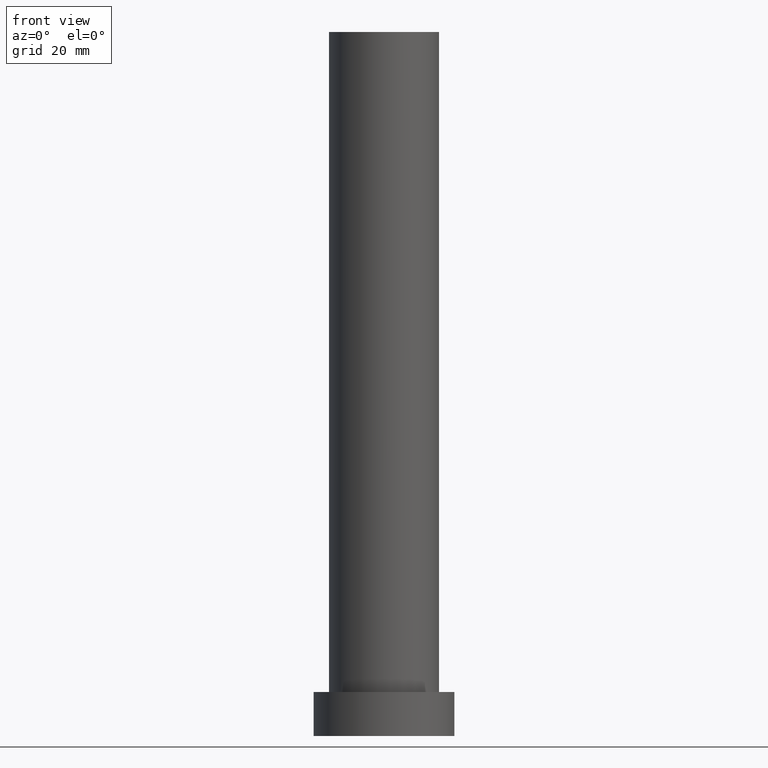
[diagram: clean part render]
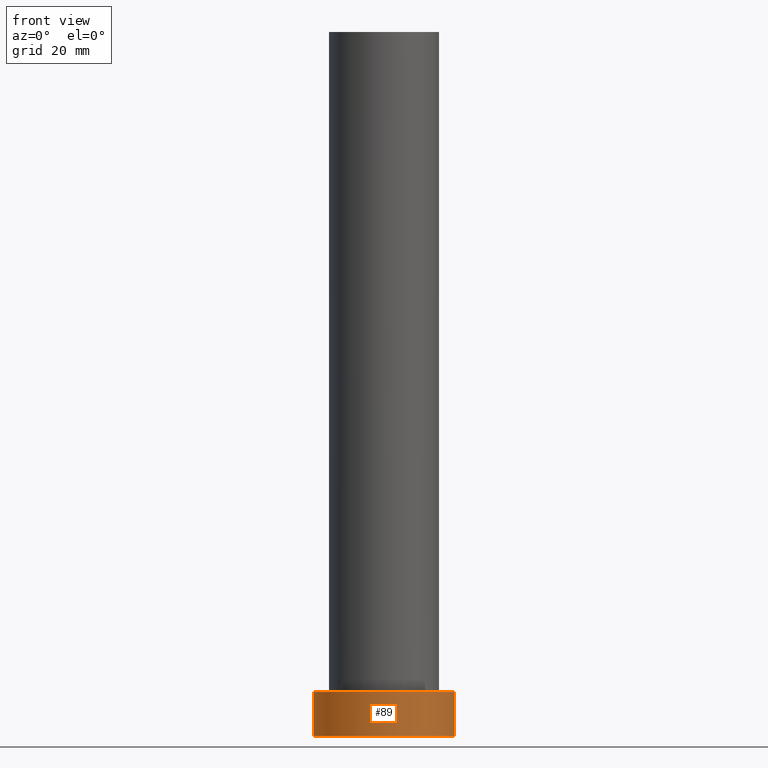
[diagram: same view with one face highlighted and labeled with its STEP entity id]
A machine part, front view. The second image highlights one B-rep face of the part: STEP entity #89.
In plain terms, the highlighted cylindrical surface (partial cylindrical patch) has radius 16 mm, axis along (-0, -0, -1).
Its self-contained STEP definition (entity closure, byte-faithful):
#3 = CARTESIAN_POINT ( 'NONE',  ( -16.00000000000000000, 0.000000000000000000, 10.00000000000000000 ) ) ;
#12 = DIRECTION ( 'NONE',  ( -0.000000000000000000, -0.000000000000000000, -1.000000000000000000 ) ) ;
#17 = AXIS2_PLACEMENT_3D ( 'NONE', #120, #196, #79 ) ;
#31 = LINE ( 'NONE', #114, #61 ) ;
#34 = CYLINDRICAL_SURFACE ( 'NONE', #115, 16.00000000000000000 ) ;
#35 = DIRECTION ( 'NONE',  ( -0.000000000000000000, -0.000000000000000000, -1.000000000000000000 ) ) ;
#37 = CIRCLE ( 'NONE', #238, 16.00000000000000000 ) ;
#54 = ORIENTED_EDGE ( 'NONE', *, *, #206, .F. ) ;
#61 = VECTOR ( 'NONE', #191, 1000.000000000000000 ) ;
#79 = DIRECTION ( 'NONE',  ( 1.000000000000000000, 0.000000000000000000, 0.000000000000000000 ) ) ;
#86 = VECTOR ( 'NONE', #35, 1000.000000000000000 ) ;
#89 = ADVANCED_FACE ( 'NONE', ( #93 ), #34, .T. ) ;
#93 = FACE_OUTER_BOUND ( 'NONE', #239, .T. ) ;
#100 = CARTESIAN_POINT ( 'NONE',  ( -16.00000000000000000, 0.000000000000000000, 0.000000000000000000 ) ) ;
#101 = LINE ( 'NONE', #254, #86 ) ;
#102 = ORIENTED_EDGE ( 'NONE', *, *, #159, .T. ) ;
#103 = CARTESIAN_POINT ( 'NONE',  ( 16.00000000000000000, 1.959434878635765131E-15, 10.00000000000000000 ) ) ;
#107 = VERTEX_POINT ( 'NONE', #100 ) ;
#114 = CARTESIAN_POINT ( 'NONE',  ( 16.00000000000000000, 1.959434878635765131E-15, 10.00000000000000000 ) ) ;
#115 = AXIS2_PLACEMENT_3D ( 'NONE', #141, #12, #234 ) ;
#120 = CARTESIAN_POINT ( 'NONE',  ( 0.000000000000000000, 0.000000000000000000, 0.000000000000000000 ) ) ;
#127 = CIRCLE ( 'NONE', #17, 16.00000000000000000 ) ;
#139 = EDGE_CURVE ( 'NONE', #151, #107, #101, .T. ) ;
#141 = CARTESIAN_POINT ( 'NONE',  ( 0.000000000000000000, 0.000000000000000000, 10.00000000000000000 ) ) ;
#151 = VERTEX_POINT ( 'NONE', #3 ) ;
#159 = EDGE_CURVE ( 'NONE', #107, #165, #127, .T. ) ;
#164 = CARTESIAN_POINT ( 'NONE',  ( 16.00000000000000000, 1.959434878635765131E-15, 0.000000000000000000 ) ) ;
#165 = VERTEX_POINT ( 'NONE', #164 ) ;
#170 = VERTEX_POINT ( 'NONE', #103 ) ;
#181 = CARTESIAN_POINT ( 'NONE',  ( 0.000000000000000000, 0.000000000000000000, 10.00000000000000000 ) ) ;
#191 = DIRECTION ( 'NONE',  ( -0.000000000000000000, -0.000000000000000000, -1.000000000000000000 ) ) ;
#196 = DIRECTION ( 'NONE',  ( 0.000000000000000000, 0.000000000000000000, 1.000000000000000000 ) ) ;
#201 = ORIENTED_EDGE ( 'NONE', *, *, #247, .F. ) ;
#202 = DIRECTION ( 'NONE',  ( 0.000000000000000000, 0.000000000000000000, 1.000000000000000000 ) ) ;
#206 = EDGE_CURVE ( 'NONE', #170, #165, #31, .T. ) ;
#234 = DIRECTION ( 'NONE',  ( -1.000000000000000000, 0.000000000000000000, 0.000000000000000000 ) ) ;
#236 = ORIENTED_EDGE ( 'NONE', *, *, #139, .T. ) ;
#238 = AXIS2_PLACEMENT_3D ( 'NONE', #181, #202, #240 ) ;
#239 = EDGE_LOOP ( 'NONE', ( #54, #201, #236, #102 ) ) ;
#240 = DIRECTION ( 'NONE',  ( 1.000000000000000000, 0.000000000000000000, 0.000000000000000000 ) ) ;
#247 = EDGE_CURVE ( 'NONE', #151, #170, #37, .T. ) ;
#254 = CARTESIAN_POINT ( 'NONE',  ( -16.00000000000000000, 0.000000000000000000, 10.00000000000000000 ) ) ;